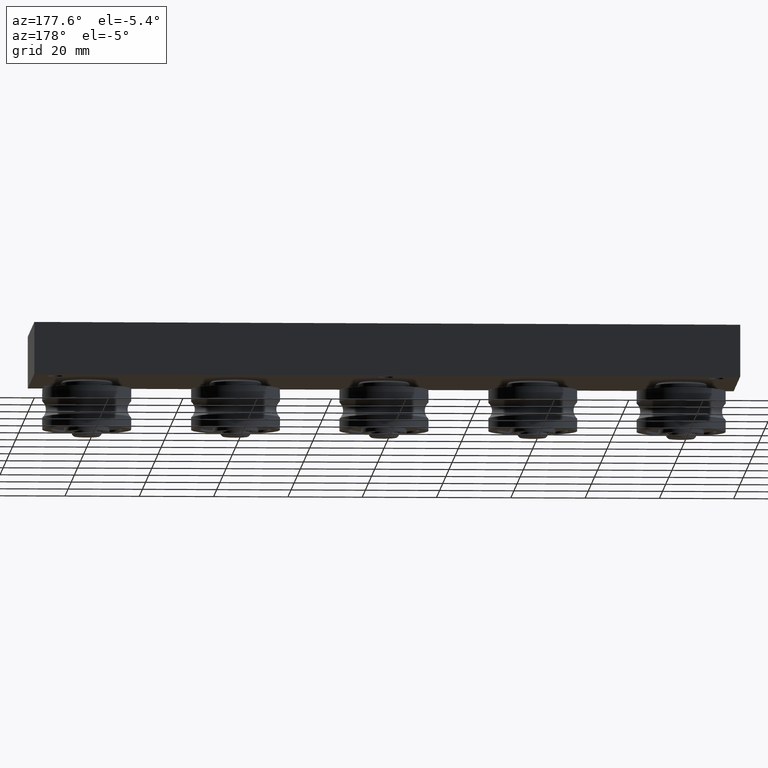
[diagram: clean part render]
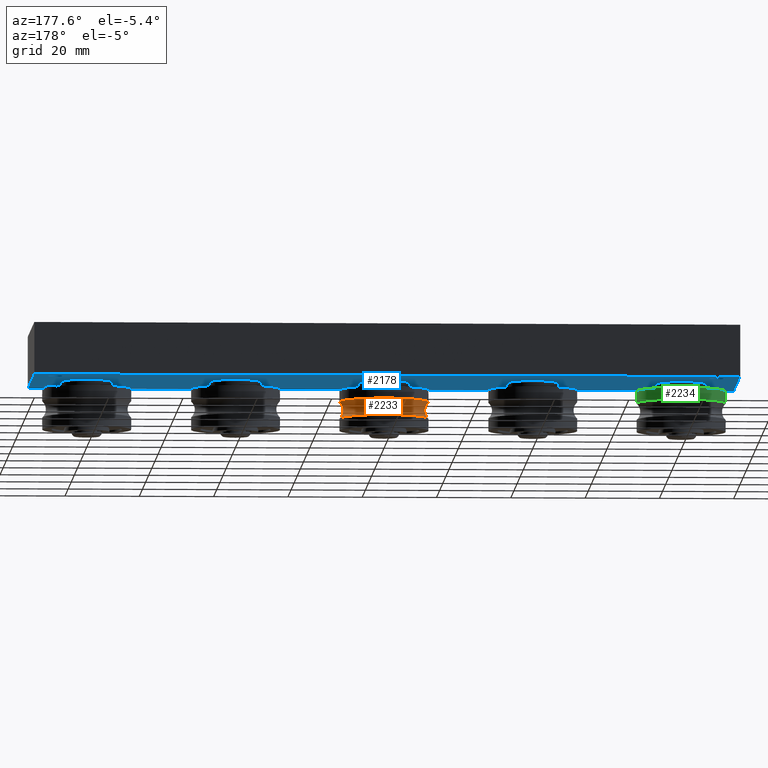
[diagram: same view with three faces highlighted in distinct colors, each labeled with its STEP entity id]
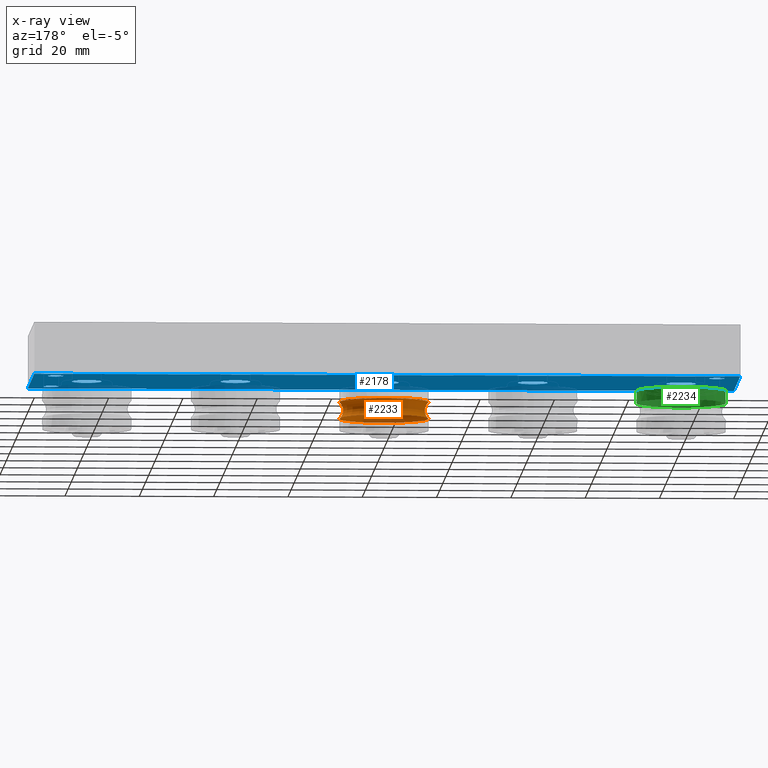
[diagram: x-ray of the same camera — body ghosted, the three highlighted faces saturated]
A machine part, auxiliary view with three faces highlighted in distinct colors.
The next image is the same camera in x-ray (body ghosted, the three faces saturated) — at least one of them is partly hidden behind the body in this view.
Their STEP definitions:

[orange] entity #2233 — the highlighted toroidal blend (fillet) surface has major radius 14 mm and minor (blend) radius 3 mm.
#99=TOROIDAL_SURFACE('',#2667,14.,3.);
#364=FACE_OUTER_BOUND('',#544,.T.);
#544=EDGE_LOOP('',(#1837,#1838,#1839,#1840,#1841,#1842));
#958=CIRCLE('',#2665,12.);
#959=CIRCLE('',#2666,12.);
#960=CIRCLE('',#2668,3.);
#961=CIRCLE('',#2669,12.);
#962=CIRCLE('',#2670,12.);
#1127=VERTEX_POINT('',#3898);
#1128=VERTEX_POINT('',#3899);
#1129=VERTEX_POINT('',#3904);
#1130=VERTEX_POINT('',#3906);
#1373=EDGE_CURVE('',#1127,#1128,#958,.T.);
#1375=EDGE_CURVE('',#1128,#1127,#959,.T.);
#1376=EDGE_CURVE('',#1128,#1129,#960,.T.);
#1377=EDGE_CURVE('',#1130,#1129,#961,.T.);
#1378=EDGE_CURVE('',#1129,#1130,#962,.T.);
#1837=ORIENTED_EDGE('',*,*,#1373,.T.);
#1838=ORIENTED_EDGE('',*,*,#1376,.T.);
#1839=ORIENTED_EDGE('',*,*,#1377,.F.);
#1840=ORIENTED_EDGE('',*,*,#1378,.F.);
#1841=ORIENTED_EDGE('',*,*,#1376,.F.);
#1842=ORIENTED_EDGE('',*,*,#1375,.T.);
#2233=ADVANCED_FACE('',(#364),#99,.F.);
#2665=AXIS2_PLACEMENT_3D('',#3900,#3216,#3217);
#2666=AXIS2_PLACEMENT_3D('',#3902,#3219,#3220);
#2667=AXIS2_PLACEMENT_3D('',#3903,#3221,#3222);
#2668=AXIS2_PLACEMENT_3D('',#3905,#3223,#3224);
#2669=AXIS2_PLACEMENT_3D('',#3907,#3225,#3226);
#2670=AXIS2_PLACEMENT_3D('',#3908,#3227,#3228);
#3216=DIRECTION('center_axis',(1.,0.,0.));
#3217=DIRECTION('ref_axis',(0.,1.,0.));
#3219=DIRECTION('center_axis',(1.,0.,0.));
#3220=DIRECTION('ref_axis',(0.,1.,0.));
#3221=DIRECTION('center_axis',(1.,0.,0.));
#3222=DIRECTION('ref_axis',(0.,0.,-1.));
#3223=DIRECTION('center_axis',(0.,-1.,-1.22464679914735E-16));
#3224=DIRECTION('ref_axis',(0.,-1.22464679914735E-16,1.));
#3225=DIRECTION('center_axis',(1.,0.,0.));
#3226=DIRECTION('ref_axis',(0.,1.,0.));
#3227=DIRECTION('center_axis',(1.,0.,0.));
#3228=DIRECTION('ref_axis',(0.,1.,0.));
#3898=CARTESIAN_POINT('',(-2.23606797749979,-12.,-1.46957615897682E-15));
#3899=CARTESIAN_POINT('',(-2.23606797749979,-1.46957615897682E-15,12.));
#3900=CARTESIAN_POINT('Origin',(-2.23606797749979,0.,0.));
#3902=CARTESIAN_POINT('Origin',(-2.23606797749979,0.,0.));
#3903=CARTESIAN_POINT('Origin',(0.,0.,0.));
#3904=CARTESIAN_POINT('',(2.23606797749979,-1.46957615897682E-15,12.));
#3905=CARTESIAN_POINT('Origin',(0.,-1.71450551880629E-15,14.));
#3906=CARTESIAN_POINT('',(2.23606797749979,-12.,-1.46957615897682E-15));
#3907=CARTESIAN_POINT('Origin',(2.23606797749979,0.,0.));
#3908=CARTESIAN_POINT('Origin',(2.23606797749979,0.,0.));

[blue] entity #2178 — the highlighted planar face has unit normal (0, 0, 1).
#193=FACE_BOUND('',#464,.T.);
#194=FACE_BOUND('',#465,.T.);
#195=FACE_BOUND('',#466,.T.);
#196=FACE_BOUND('',#467,.T.);
#197=FACE_BOUND('',#468,.T.);
#198=FACE_BOUND('',#469,.T.);
#199=FACE_BOUND('',#470,.T.);
#200=FACE_BOUND('',#471,.T.);
#201=FACE_BOUND('',#472,.T.);
#202=FACE_BOUND('',#473,.T.);
#203=FACE_BOUND('',#474,.T.);
#234=PLANE('',#2561);
#309=FACE_OUTER_BOUND('',#463,.T.);
#463=EDGE_LOOP('',(#1611,#1612,#1613,#1614));
#464=EDGE_LOOP('',(#1615));
#465=EDGE_LOOP('',(#1616));
#466=EDGE_LOOP('',(#1617));
#467=EDGE_LOOP('',(#1618));
#468=EDGE_LOOP('',(#1619));
#469=EDGE_LOOP('',(#1620));
#470=EDGE_LOOP('',(#1621));
#471=EDGE_LOOP('',(#1622));
#472=EDGE_LOOP('',(#1623));
#473=EDGE_LOOP('',(#1624));
#474=EDGE_LOOP('',(#1625));
#624=LINE('',#3646,#762);
#628=LINE('',#3653,#766);
#631=LINE('',#3659,#769);
#633=LINE('',#3662,#771);
#762=VECTOR('',#2930,10.);
#766=VECTOR('',#2936,10.);
#769=VECTOR('',#2941,10.);
#771=VECTOR('',#2945,10.);
#883=CIRCLE('',#2505,2.067);
#885=CIRCLE('',#2508,2.067);
#887=CIRCLE('',#2511,2.067);
#889=CIRCLE('',#2514,2.067);
#891=CIRCLE('',#2517,2.067);
#893=CIRCLE('',#2520,2.067);
#897=CIRCLE('',#2527,4.);
#901=CIRCLE('',#2534,4.);
#905=CIRCLE('',#2541,4.);
#909=CIRCLE('',#2548,4.);
#913=CIRCLE('',#2555,4.);
#1018=VERTEX_POINT('',#3541);
#1020=VERTEX_POINT('',#3547);
#1022=VERTEX_POINT('',#3553);
#1024=VERTEX_POINT('',#3559);
#1026=VERTEX_POINT('',#3565);
#1028=VERTEX_POINT('',#3571);
#1032=VERTEX_POINT('',#3584);
#1036=VERTEX_POINT('',#3597);
#1040=VERTEX_POINT('',#3610);
#1044=VERTEX_POINT('',#3623);
#1048=VERTEX_POINT('',#3636);
#1051=VERTEX_POINT('',#3643);
#1052=VERTEX_POINT('',#3645);
#1054=VERTEX_POINT('',#3651);
#1056=VERTEX_POINT('',#3657);
#1211=EDGE_CURVE('',#1018,#1018,#883,.T.);
#1214=EDGE_CURVE('',#1020,#1020,#885,.T.);
#1217=EDGE_CURVE('',#1022,#1022,#887,.T.);
#1220=EDGE_CURVE('',#1024,#1024,#889,.T.);
#1223=EDGE_CURVE('',#1026,#1026,#891,.T.);
#1226=EDGE_CURVE('',#1028,#1028,#893,.T.);
#1232=EDGE_CURVE('',#1032,#1032,#897,.T.);
#1238=EDGE_CURVE('',#1036,#1036,#901,.T.);
#1244=EDGE_CURVE('',#1040,#1040,#905,.T.);
#1250=EDGE_CURVE('',#1044,#1044,#909,.T.);
#1256=EDGE_CURVE('',#1048,#1048,#913,.T.);
#1259=EDGE_CURVE('',#1052,#1051,#624,.T.);
#1263=EDGE_CURVE('',#1051,#1054,#628,.T.);
#1266=EDGE_CURVE('',#1054,#1056,#631,.T.);
#1268=EDGE_CURVE('',#1056,#1052,#633,.T.);
#1611=ORIENTED_EDGE('',*,*,#1268,.T.);
#1612=ORIENTED_EDGE('',*,*,#1259,.T.);
#1613=ORIENTED_EDGE('',*,*,#1263,.T.);
#1614=ORIENTED_EDGE('',*,*,#1266,.T.);
#1615=ORIENTED_EDGE('',*,*,#1211,.T.);
#1616=ORIENTED_EDGE('',*,*,#1214,.T.);
#1617=ORIENTED_EDGE('',*,*,#1217,.T.);
#1618=ORIENTED_EDGE('',*,*,#1220,.T.);
#1619=ORIENTED_EDGE('',*,*,#1223,.T.);
#1620=ORIENTED_EDGE('',*,*,#1226,.T.);
#1621=ORIENTED_EDGE('',*,*,#1232,.T.);
#1622=ORIENTED_EDGE('',*,*,#1238,.T.);
#1623=ORIENTED_EDGE('',*,*,#1244,.T.);
#1624=ORIENTED_EDGE('',*,*,#1250,.T.);
#1625=ORIENTED_EDGE('',*,*,#1256,.T.);
#2178=ADVANCED_FACE('',(#309,#193,#194,#195,#196,#197,#198,#199,#200,#201,
#202,#203),#234,.F.);
#2505=AXIS2_PLACEMENT_3D('',#3543,#2809,#2810);
#2508=AXIS2_PLACEMENT_3D('',#3549,#2816,#2817);
#2511=AXIS2_PLACEMENT_3D('',#3555,#2823,#2824);
#2514=AXIS2_PLACEMENT_3D('',#3561,#2830,#2831);
#2517=AXIS2_PLACEMENT_3D('',#3567,#2837,#2838);
#2520=AXIS2_PLACEMENT_3D('',#3573,#2844,#2845);
#2527=AXIS2_PLACEMENT_3D('',#3586,#2860,#2861);
#2534=AXIS2_PLACEMENT_3D('',#3599,#2876,#2877);
#2541=AXIS2_PLACEMENT_3D('',#3612,#2892,#2893);
#2548=AXIS2_PLACEMENT_3D('',#3625,#2908,#2909);
#2555=AXIS2_PLACEMENT_3D('',#3638,#2924,#2925);
#2561=AXIS2_PLACEMENT_3D('',#3664,#2948,#2949);
#2809=DIRECTION('center_axis',(0.,0.,1.));
#2810=DIRECTION('ref_axis',(1.,0.,0.));
#2816=DIRECTION('center_axis',(0.,0.,1.));
#2817=DIRECTION('ref_axis',(1.,0.,0.));
#2823=DIRECTION('center_axis',(0.,0.,1.));
#2824=DIRECTION('ref_axis',(1.,0.,0.));
#2830=DIRECTION('center_axis',(0.,0.,1.));
#2831=DIRECTION('ref_axis',(1.,0.,0.));
#2837=DIRECTION('center_axis',(0.,0.,1.));
#2838=DIRECTION('ref_axis',(1.,0.,0.));
#2844=DIRECTION('center_axis',(0.,0.,1.));
#2845=DIRECTION('ref_axis',(1.,0.,0.));
#2860=DIRECTION('center_axis',(0.,0.,1.));
#2861=DIRECTION('ref_axis',(1.,0.,0.));
#2876=DIRECTION('center_axis',(0.,0.,1.));
#2877=DIRECTION('ref_axis',(1.,0.,0.));
#2892=DIRECTION('center_axis',(0.,0.,1.));
#2893=DIRECTION('ref_axis',(1.,0.,0.));
#2908=DIRECTION('center_axis',(0.,0.,1.));
#2909=DIRECTION('ref_axis',(1.,0.,0.));
#2924=DIRECTION('center_axis',(0.,0.,1.));
#2925=DIRECTION('ref_axis',(1.,0.,0.));
#2930=DIRECTION('',(0.,-1.,0.));
#2936=DIRECTION('',(-1.,0.,0.));
#2941=DIRECTION('',(0.,1.,0.));
#2945=DIRECTION('',(1.,0.,0.));
#2948=DIRECTION('center_axis',(0.,0.,1.));
#2949=DIRECTION('ref_axis',(1.,0.,0.));
#3541=CARTESIAN_POINT('',(-2.067,15.,0.));
#3543=CARTESIAN_POINT('Origin',(0.,15.,0.));
#3547=CARTESIAN_POINT('',(-2.067,-15.,0.));
#3549=CARTESIAN_POINT('Origin',(0.,-15.,0.));
#3553=CARTESIAN_POINT('',(86.933,15.,0.));
#3555=CARTESIAN_POINT('Origin',(89.,15.,0.));
#3559=CARTESIAN_POINT('',(86.933,-15.,0.));
#3561=CARTESIAN_POINT('Origin',(89.,-15.,0.));
#3565=CARTESIAN_POINT('',(-91.067,-15.,0.));
#3567=CARTESIAN_POINT('Origin',(-89.,-15.,0.));
#3571=CARTESIAN_POINT('',(-91.067,15.,0.));
#3573=CARTESIAN_POINT('Origin',(-89.,15.,0.));
#3584=CARTESIAN_POINT('',(-84.,-0.499999999999999,0.));
#3586=CARTESIAN_POINT('Origin',(-80.,-0.499999999999998,0.));
#3597=CARTESIAN_POINT('',(76.,-0.499999999999999,0.));
#3599=CARTESIAN_POINT('Origin',(80.,-0.499999999999998,0.));
#3610=CARTESIAN_POINT('',(-4.,-0.499999999999999,0.));
#3612=CARTESIAN_POINT('Origin',(0.,-0.499999999999998,0.));
#3623=CARTESIAN_POINT('',(36.,0.699999999999998,0.));
#3625=CARTESIAN_POINT('Origin',(40.,0.699999999999998,0.));
#3636=CARTESIAN_POINT('',(-44.,0.699999999999998,0.));
#3638=CARTESIAN_POINT('Origin',(-40.,0.699999999999998,0.));
#3643=CARTESIAN_POINT('',(95.,-21.,0.));
#3645=CARTESIAN_POINT('',(95.,21.,0.));
#3646=CARTESIAN_POINT('',(95.,21.,0.));
#3651=CARTESIAN_POINT('',(-95.,-21.,0.));
#3653=CARTESIAN_POINT('',(95.,-21.,0.));
#3657=CARTESIAN_POINT('',(-95.,21.,0.));
#3659=CARTESIAN_POINT('',(-95.,-21.,0.));
#3662=CARTESIAN_POINT('',(-95.,21.,0.));
#3664=CARTESIAN_POINT('Origin',(0.,1.09630173278033E-16,0.));

[green] entity #2234 — the highlighted cylindrical surface (bore or boss wall) has radius 12 mm, axis along (0, 0, 1).
#365=FACE_OUTER_BOUND('',#545,.T.);
#545=EDGE_LOOP('',(#1843,#1844,#1845,#1846,#1847));
#695=LINE('',#3912,#833);
#833=VECTOR('',#3233,12.);
#961=CIRCLE('',#2669,12.);
#962=CIRCLE('',#2670,12.);
#963=CIRCLE('',#2672,12.);
#1129=VERTEX_POINT('',#3904);
#1130=VERTEX_POINT('',#3906);
#1131=VERTEX_POINT('',#3910);
#1377=EDGE_CURVE('',#1130,#1129,#961,.T.);
#1378=EDGE_CURVE('',#1129,#1130,#962,.T.);
#1379=EDGE_CURVE('',#1131,#1131,#963,.T.);
#1380=EDGE_CURVE('',#1131,#1130,#695,.T.);
#1843=ORIENTED_EDGE('',*,*,#1379,.F.);
#1844=ORIENTED_EDGE('',*,*,#1380,.T.);
#1845=ORIENTED_EDGE('',*,*,#1377,.T.);
#1846=ORIENTED_EDGE('',*,*,#1378,.T.);
#1847=ORIENTED_EDGE('',*,*,#1380,.F.);
#2131=CYLINDRICAL_SURFACE('',#2671,12.);
#2234=ADVANCED_FACE('',(#365),#2131,.T.);
#2669=AXIS2_PLACEMENT_3D('',#3907,#3225,#3226);
#2670=AXIS2_PLACEMENT_3D('',#3908,#3227,#3228);
#2671=AXIS2_PLACEMENT_3D('',#3909,#3229,#3230);
#2672=AXIS2_PLACEMENT_3D('',#3911,#3231,#3232);
#3225=DIRECTION('center_axis',(1.,0.,0.));
#3226=DIRECTION('ref_axis',(0.,1.,0.));
#3227=DIRECTION('center_axis',(1.,0.,0.));
#3228=DIRECTION('ref_axis',(0.,1.,0.));
#3229=DIRECTION('center_axis',(1.,0.,0.));
#3230=DIRECTION('ref_axis',(0.,1.,0.));
#3231=DIRECTION('center_axis',(1.,0.,0.));
#3232=DIRECTION('ref_axis',(0.,1.,0.));
#3233=DIRECTION('',(-1.,0.,0.));
#3904=CARTESIAN_POINT('',(2.23606797749979,-1.46957615897682E-15,12.));
#3906=CARTESIAN_POINT('',(2.23606797749979,-12.,-1.46957615897682E-15));
#3907=CARTESIAN_POINT('Origin',(2.23606797749979,0.,0.));
#3908=CARTESIAN_POINT('Origin',(2.23606797749979,0.,0.));
#3909=CARTESIAN_POINT('Origin',(3.86803398874989,0.,0.));
#3910=CARTESIAN_POINT('',(5.5,-12.,-1.46957615897682E-15));
#3911=CARTESIAN_POINT('Origin',(5.5,0.,0.));
#3912=CARTESIAN_POINT('',(3.86803398874989,-12.,-1.46957615897682E-15));